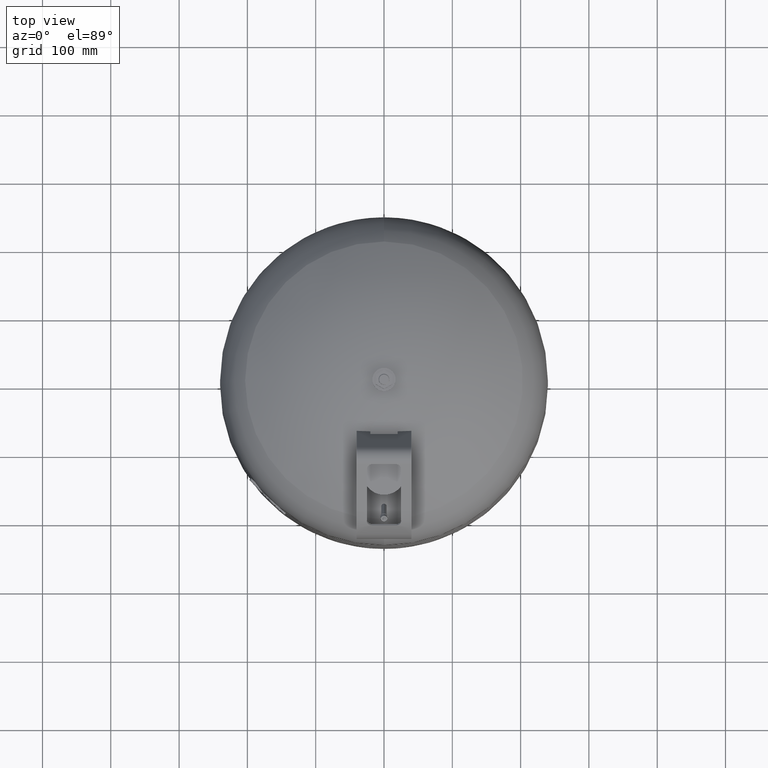
[diagram: clean part render]
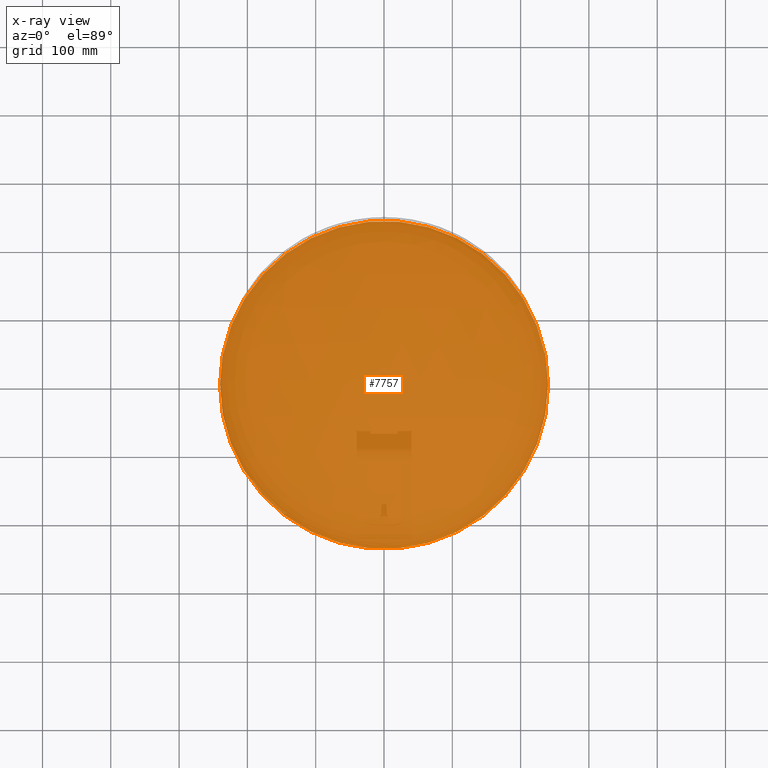
[diagram: x-ray — body ghosted, one internal face saturated and labeled with its STEP entity id]
A machine part, top view, then the same camera in x-ray: the body is ghosted and one INTERNAL B-rep face — a face not visible from any outside direction — is saturated and labeled: STEP entity #7757.
In plain terms, the highlighted planar face has unit normal (0, 0, 1).
Its self-contained STEP definition (entity closure, byte-faithful):
#7595=CARTESIAN_POINT('',(-240.0,0.0,324.0));
#7596=VERTEX_POINT('',#7595);
#7605=CARTESIAN_POINT('',(240.0,2.939055E-014,324.0));
#7606=VERTEX_POINT('',#7605);
#7607=CARTESIAN_POINT('',(0.0,0.0,324.0));
#7608=DIRECTION('',(0.0,0.0,1.0));
#7609=DIRECTION('',(-1.0,0.0,0.0));
#7610=AXIS2_PLACEMENT_3D('',#7607,#7608,#7609);
#7611=CIRCLE('',#7610,240.0);
#7612=EDGE_CURVE('',#7606,#7596,#7611,.T.);
#7738=CARTESIAN_POINT('',(0.0,0.0,324.0));
#7739=DIRECTION('',(0.0,0.0,1.0));
#7740=DIRECTION('',(-1.0,0.0,0.0));
#7741=AXIS2_PLACEMENT_3D('',#7738,#7739,#7740);
#7742=CIRCLE('',#7741,240.0);
#7743=EDGE_CURVE('',#7596,#7606,#7742,.T.);
#7748=CARTESIAN_POINT('',(-119.999999999999990,0.0,324.0));
#7749=DIRECTION('',(0.0,0.0,1.0));
#7750=DIRECTION('',(0.0,-1.0,0.0));
#7751=AXIS2_PLACEMENT_3D('',#7748,#7749,#7750);
#7752=PLANE('',#7751);
#7753=ORIENTED_EDGE('',*,*,#7743,.T.);
#7754=ORIENTED_EDGE('',*,*,#7612,.T.);
#7755=EDGE_LOOP('',(#7753,#7754));
#7756=FACE_OUTER_BOUND('',#7755,.T.);
#7757=ADVANCED_FACE('',(#7756),#7752,.T.);